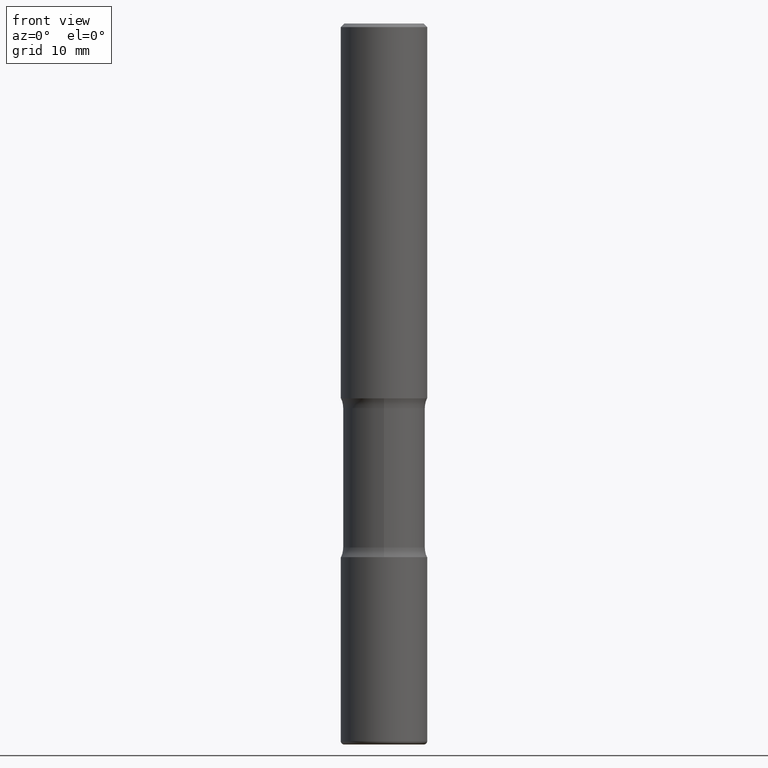
[diagram: clean part render]
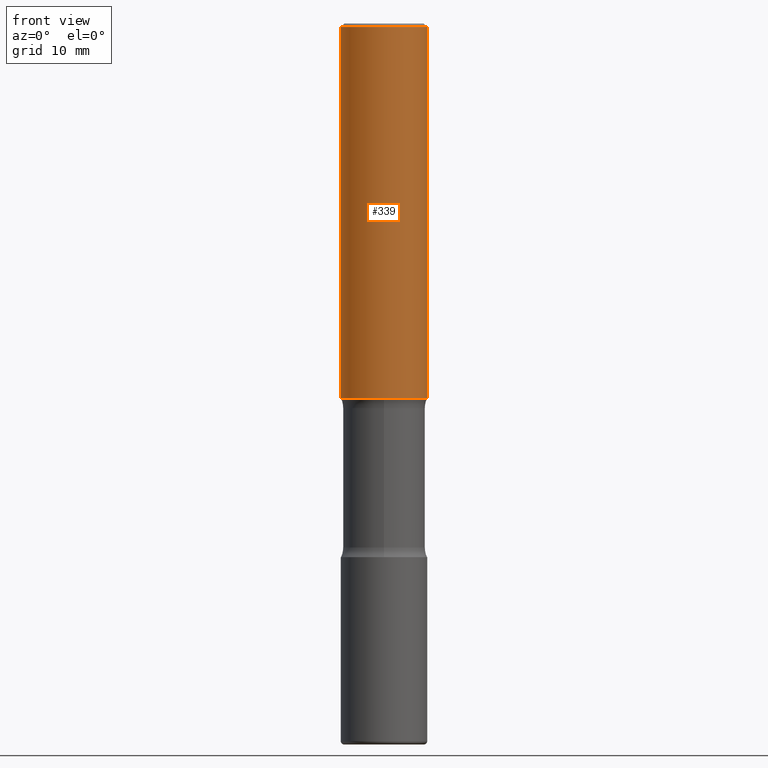
[diagram: same view with one face highlighted and labeled with its STEP entity id]
A machine part, front view. The second image highlights one B-rep face of the part: STEP entity #339.
In plain terms, the highlighted cylindrical surface (partial cylindrical patch) has radius 5.9995 mm, axis along (-0, 0, 1).
Its self-contained STEP definition (entity closure, byte-faithful):
#7 = CIRCLE ( 'NONE', #21, 0.2361999999999998823 ) ;
#16 = DIRECTION ( 'NONE',  ( -2.445468806185136597E-29, 3.491481338843145583E-15, 1.000000000000000000 ) ) ;
#18 = VECTOR ( 'NONE', #499, 39.37007874015748143 ) ;
#21 = AXIS2_PLACEMENT_3D ( 'NONE', #92, #16, #356 ) ;
#36 = EDGE_CURVE ( 'NONE', #237, #476, #327, .T. ) ;
#82 = AXIS2_PLACEMENT_3D ( 'NONE', #466, #203, #437 ) ;
#92 = CARTESIAN_POINT ( 'NONE',  ( 4.890937612370289799E-31, -6.982962677686315028E-17, -0.02000000000000006981 ) ) ;
#102 = ORIENTED_EDGE ( 'NONE', *, *, #531, .F. ) ;
#103 = VECTOR ( 'NONE', #229, 39.37007874015748143 ) ;
#137 = CARTESIAN_POINT ( 'NONE',  ( 5.006363740022212241E-29, -7.147760596879688202E-15, -2.047200000000000131 ) ) ;
#155 = VERTEX_POINT ( 'NONE', #255 ) ;
#181 = ORIENTED_EDGE ( 'NONE', *, *, #193, .T. ) ;
#182 = CARTESIAN_POINT ( 'NONE',  ( 0.2362000000000001321, -8.797136381349186305E-15, -2.047200000000000131 ) ) ;
#193 = EDGE_CURVE ( 'NONE', #448, #155, #417, .T. ) ;
#203 = DIRECTION ( 'NONE',  ( -2.445468806185136597E-29, 3.491481338843145583E-15, 1.000000000000000000 ) ) ;
#210 = EDGE_CURVE ( 'NONE', #237, #448, #284, .T. ) ;
#218 = DIRECTION ( 'NONE',  ( -2.445468806185136597E-29, 3.491481338843145583E-15, 1.000000000000000000 ) ) ;
#229 = DIRECTION ( 'NONE',  ( -2.445468806185136877E-29, 3.491481338843145188E-15, 1.000000000000000000 ) ) ;
#237 = VERTEX_POINT ( 'NONE', #510 ) ;
#255 = CARTESIAN_POINT ( 'NONE',  ( 0.2361999999999998823, -1.690279253850498179E-15, -0.02000000000000006981 ) ) ;
#282 = CARTESIAN_POINT ( 'NONE',  ( -0.2361999999999998823, 1.579546157692632438E-15, -0.02000000000000006981 ) ) ;
#283 = CARTESIAN_POINT ( 'NONE',  ( -0.2361999999999999933, 1.678301941865356591E-15, -1.161852468318208757E-29 ) ) ;
#284 = CIRCLE ( 'NONE', #463, 0.2362000000000001321 ) ;
#319 = CARTESIAN_POINT ( 'NONE',  ( 0.2361999999999999933, -1.649375784469496131E-15, 1.151752954443000088E-29 ) ) ;
#327 = LINE ( 'NONE', #283, #18 ) ;
#339 = ADVANCED_FACE ( 'NONE', ( #471 ), #511, .T. ) ;
#356 = DIRECTION ( 'NONE',  ( 1.000000000000000000, -6.982962677686267499E-15, 0.000000000000000000 ) ) ;
#417 = LINE ( 'NONE', #319, #103 ) ;
#437 = DIRECTION ( 'NONE',  ( 1.000000000000000000, -6.982962677686266711E-15, 4.876176775795936353E-29 ) ) ;
#447 = ORIENTED_EDGE ( 'NONE', *, *, #36, .F. ) ;
#448 = VERTEX_POINT ( 'NONE', #182 ) ;
#463 = AXIS2_PLACEMENT_3D ( 'NONE', #137, #218, #555 ) ;
#466 = CARTESIAN_POINT ( 'NONE',  ( 0.000000000000000000, 0.000000000000000000, 0.000000000000000000 ) ) ;
#471 = FACE_OUTER_BOUND ( 'NONE', #527, .T. ) ;
#476 = VERTEX_POINT ( 'NONE', #282 ) ;
#499 = DIRECTION ( 'NONE',  ( -2.445468806185136877E-29, 3.491481338843145188E-15, 1.000000000000000000 ) ) ;
#510 = CARTESIAN_POINT ( 'NONE',  ( -0.2362000000000001598, -1.930493169962915017E-15, -2.047200000000000131 ) ) ;
#511 = CYLINDRICAL_SURFACE ( 'NONE', #82, 0.2361999999999999933 ) ;
#527 = EDGE_LOOP ( 'NONE', ( #447, #532, #181, #102 ) ) ;
#531 = EDGE_CURVE ( 'NONE', #476, #155, #7, .T. ) ;
#532 = ORIENTED_EDGE ( 'NONE', *, *, #210, .T. ) ;
#555 = DIRECTION ( 'NONE',  ( 1.000000000000000000, -6.982962677686269077E-15, 0.000000000000000000 ) ) ;